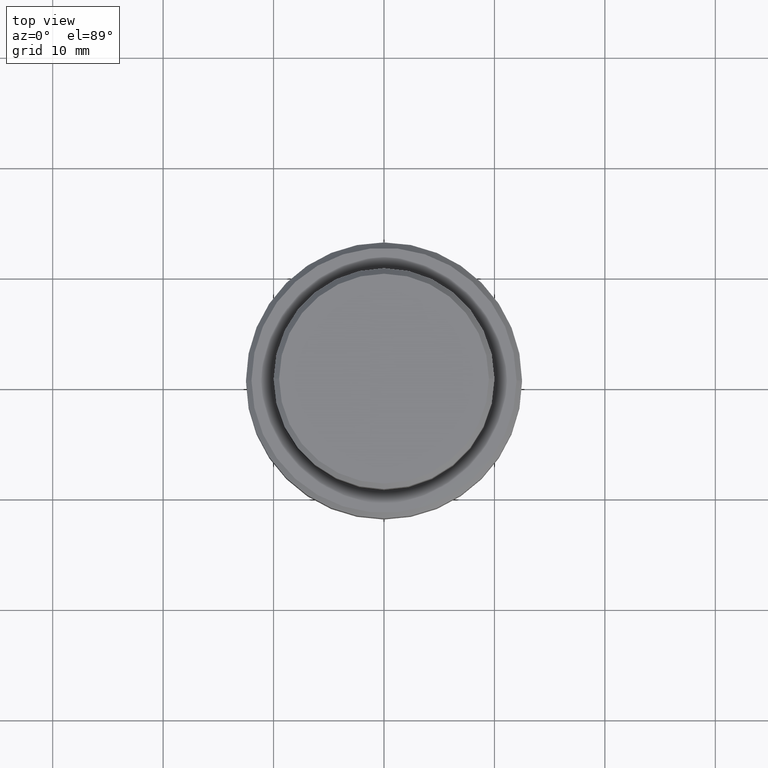
[diagram: clean part render]
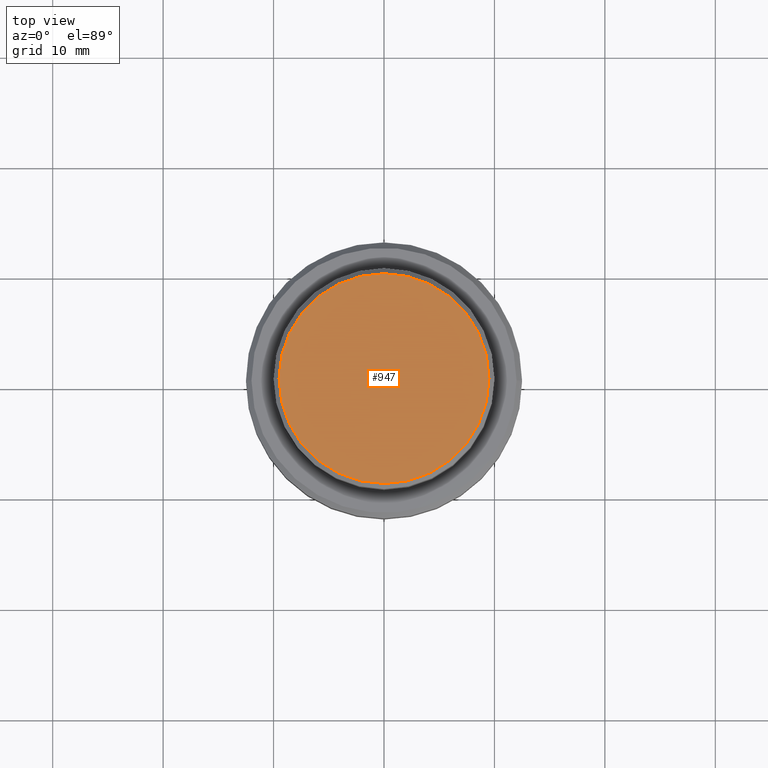
[diagram: same view with one face highlighted and labeled with its STEP entity id]
A machine part, top view. The second image highlights one B-rep face of the part: STEP entity #947.
In plain terms, the highlighted planar face has unit normal (0, -0, 1).
Its self-contained STEP definition (entity closure, byte-faithful):
#161 = DIRECTION ( 'NONE',  ( 1.000000000000000000, 0.000000000000000000, 0.000000000000000000 ) ) ;
#171 = AXIS2_PLACEMENT_3D ( 'NONE', #705, #186, #936 ) ;
#186 = DIRECTION ( 'NONE',  ( -0.000000000000000000, -0.000000000000000000, 1.000000000000000000 ) ) ;
#240 = ORIENTED_EDGE ( 'NONE', *, *, #1218, .T. ) ;
#279 = DIRECTION ( 'NONE',  ( 0.000000000000000000, -0.000000000000000000, 1.000000000000000000 ) ) ;
#336 = CARTESIAN_POINT ( 'NONE',  ( 9.499999999999994671, 1.194030629168669075E-15, 0.000000000000000000 ) ) ;
#514 = EDGE_LOOP ( 'NONE', ( #240, #1007 ) ) ;
#541 = EDGE_CURVE ( 'NONE', #727, #732, #697, .T. ) ;
#576 = CIRCLE ( 'NONE', #1403, 9.499999999999994671 ) ;
#585 = DIRECTION ( 'NONE',  ( -0.000000000000000000, -0.000000000000000000, 1.000000000000000000 ) ) ;
#600 = CARTESIAN_POINT ( 'NONE',  ( 0.000000000000000000, 0.000000000000000000, 0.000000000000000000 ) ) ;
#697 = CIRCLE ( 'NONE', #171, 9.499999999999994671 ) ;
#701 = CARTESIAN_POINT ( 'NONE',  ( 0.000000000000000000, 0.000000000000000000, 0.000000000000000000 ) ) ;
#705 = CARTESIAN_POINT ( 'NONE',  ( 0.000000000000000000, 0.000000000000000000, 0.000000000000000000 ) ) ;
#711 = FACE_OUTER_BOUND ( 'NONE', #514, .T. ) ;
#727 = VERTEX_POINT ( 'NONE', #336 ) ;
#732 = VERTEX_POINT ( 'NONE', #1117 ) ;
#907 = DIRECTION ( 'NONE',  ( 1.000000000000000000, 0.000000000000000000, 0.000000000000000000 ) ) ;
#936 = DIRECTION ( 'NONE',  ( 1.000000000000000000, 0.000000000000000000, 0.000000000000000000 ) ) ;
#947 = ADVANCED_FACE ( 'NONE', ( #711 ), #1159, .T. ) ;
#1007 = ORIENTED_EDGE ( 'NONE', *, *, #541, .T. ) ;
#1117 = CARTESIAN_POINT ( 'NONE',  ( -9.499999999999994671, 0.000000000000000000, 0.000000000000000000 ) ) ;
#1159 = PLANE ( 'NONE',  #1224 ) ;
#1218 = EDGE_CURVE ( 'NONE', #732, #727, #576, .T. ) ;
#1224 = AXIS2_PLACEMENT_3D ( 'NONE', #600, #279, #161 ) ;
#1403 = AXIS2_PLACEMENT_3D ( 'NONE', #701, #585, #907 ) ;